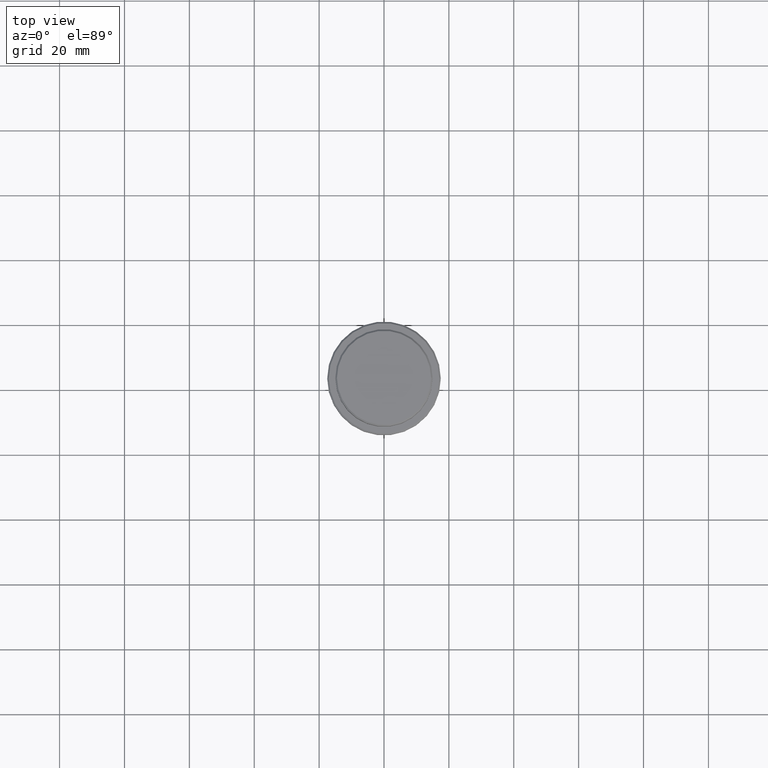
[diagram: clean part render]
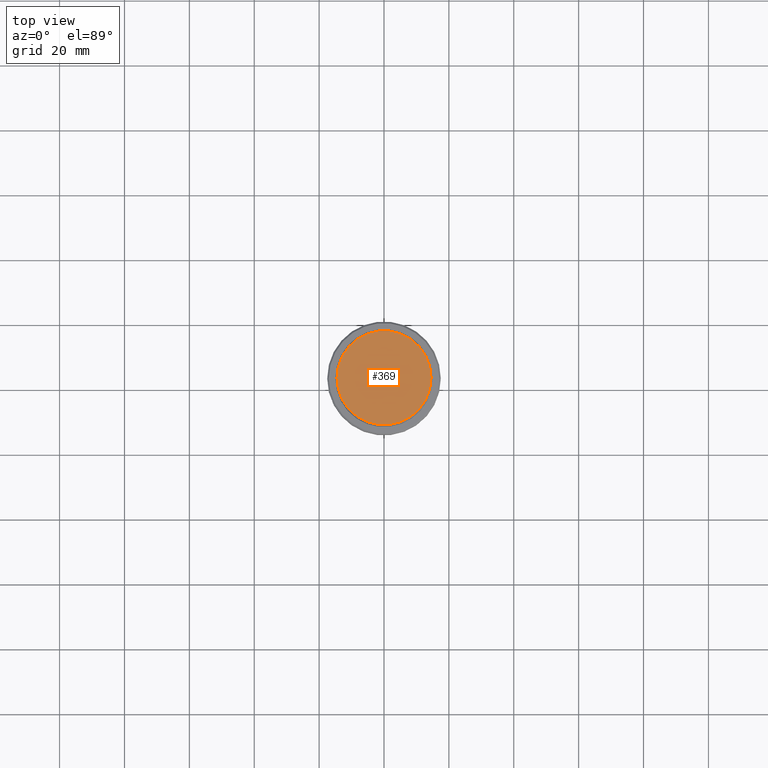
[diagram: same view with one face highlighted and labeled with its STEP entity id]
A machine part, top view. The second image highlights one B-rep face of the part: STEP entity #369.
In plain terms, the highlighted planar face has unit normal (0, -0, 1).
Its self-contained STEP definition (entity closure, byte-faithful):
#1 = EDGE_LOOP ( 'NONE', ( #393, #948 ) ) ;
#122 = DIRECTION ( 'NONE',  ( 1.000000000000000000, 0.000000000000000000, 0.000000000000000000 ) ) ;
#146 = DIRECTION ( 'NONE',  ( 1.000000000000000000, 0.000000000000000000, 0.000000000000000000 ) ) ;
#168 = CIRCLE ( 'NONE', #441, 14.49999999999998401 ) ;
#203 = PLANE ( 'NONE',  #707 ) ;
#234 = DIRECTION ( 'NONE',  ( 0.000000000000000000, -0.000000000000000000, 1.000000000000000000 ) ) ;
#369 = ADVANCED_FACE ( 'NONE', ( #426 ), #203, .T. ) ;
#384 = CARTESIAN_POINT ( 'NONE',  ( -14.49999999999998401, 0.000000000000000000, 0.000000000000000000 ) ) ;
#390 = DIRECTION ( 'NONE',  ( 1.000000000000000000, 0.000000000000000000, 0.000000000000000000 ) ) ;
#393 = ORIENTED_EDGE ( 'NONE', *, *, #893, .T. ) ;
#426 = FACE_OUTER_BOUND ( 'NONE', #1, .T. ) ;
#441 = AXIS2_PLACEMENT_3D ( 'NONE', #482, #1004, #146 ) ;
#482 = CARTESIAN_POINT ( 'NONE',  ( 0.000000000000000000, 0.000000000000000000, 0.000000000000000000 ) ) ;
#595 = AXIS2_PLACEMENT_3D ( 'NONE', #1053, #1374, #390 ) ;
#628 = EDGE_CURVE ( 'NONE', #796, #1085, #1373, .T. ) ;
#636 = CARTESIAN_POINT ( 'NONE',  ( 0.000000000000000000, 0.000000000000000000, 0.000000000000000000 ) ) ;
#707 = AXIS2_PLACEMENT_3D ( 'NONE', #636, #234, #122 ) ;
#796 = VERTEX_POINT ( 'NONE', #1297 ) ;
#893 = EDGE_CURVE ( 'NONE', #1085, #796, #168, .T. ) ;
#948 = ORIENTED_EDGE ( 'NONE', *, *, #628, .T. ) ;
#1004 = DIRECTION ( 'NONE',  ( -0.000000000000000000, -0.000000000000000000, 1.000000000000000000 ) ) ;
#1053 = CARTESIAN_POINT ( 'NONE',  ( 0.000000000000000000, 0.000000000000000000, 0.000000000000000000 ) ) ;
#1085 = VERTEX_POINT ( 'NONE', #384 ) ;
#1297 = CARTESIAN_POINT ( 'NONE',  ( 14.49999999999998401, 1.806354028742345013E-15, 0.000000000000000000 ) ) ;
#1373 = CIRCLE ( 'NONE', #595, 14.49999999999998401 ) ;
#1374 = DIRECTION ( 'NONE',  ( -0.000000000000000000, -0.000000000000000000, 1.000000000000000000 ) ) ;